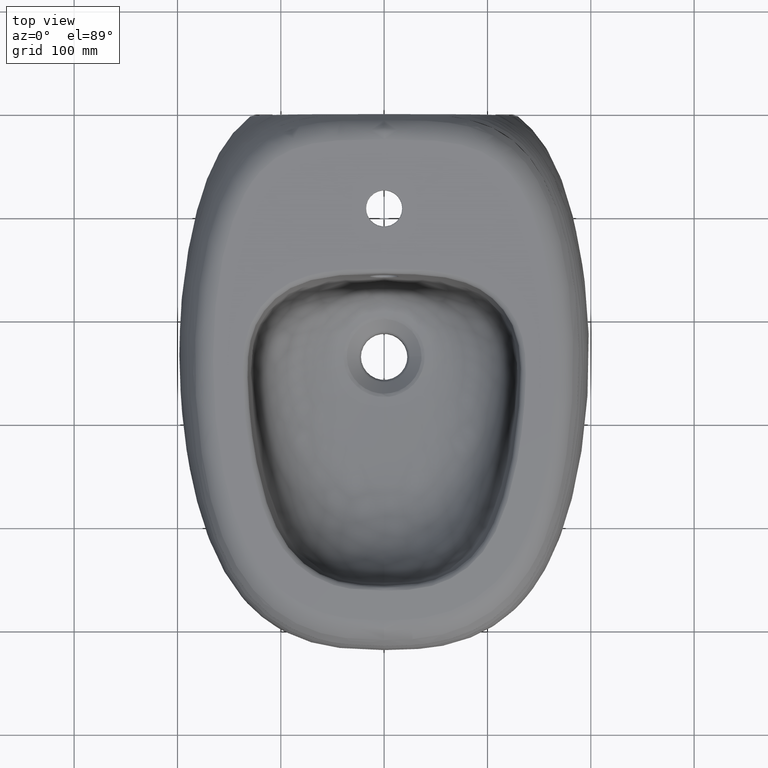
[diagram: clean part render]
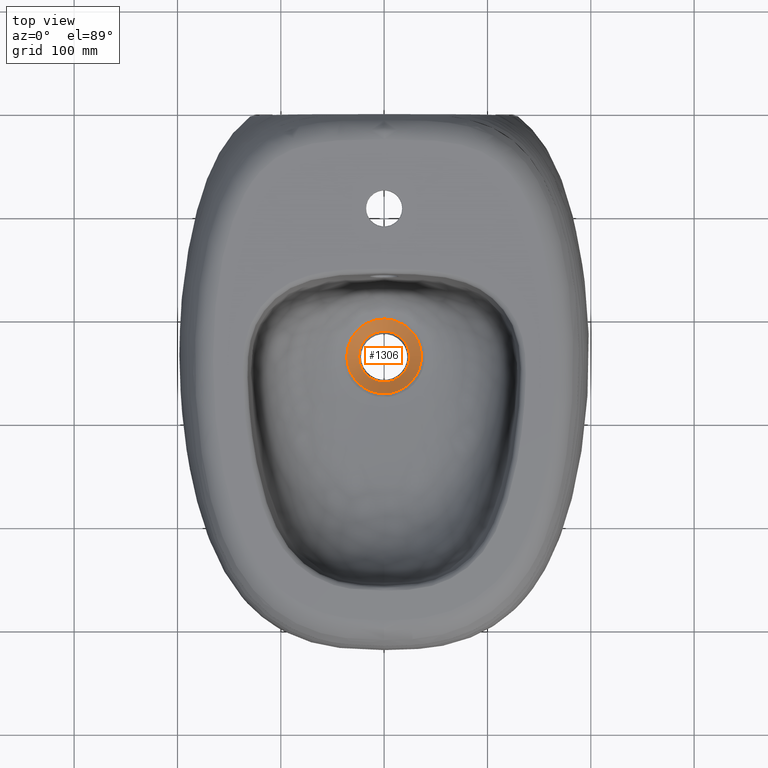
[diagram: same view with one face highlighted and labeled with its STEP entity id]
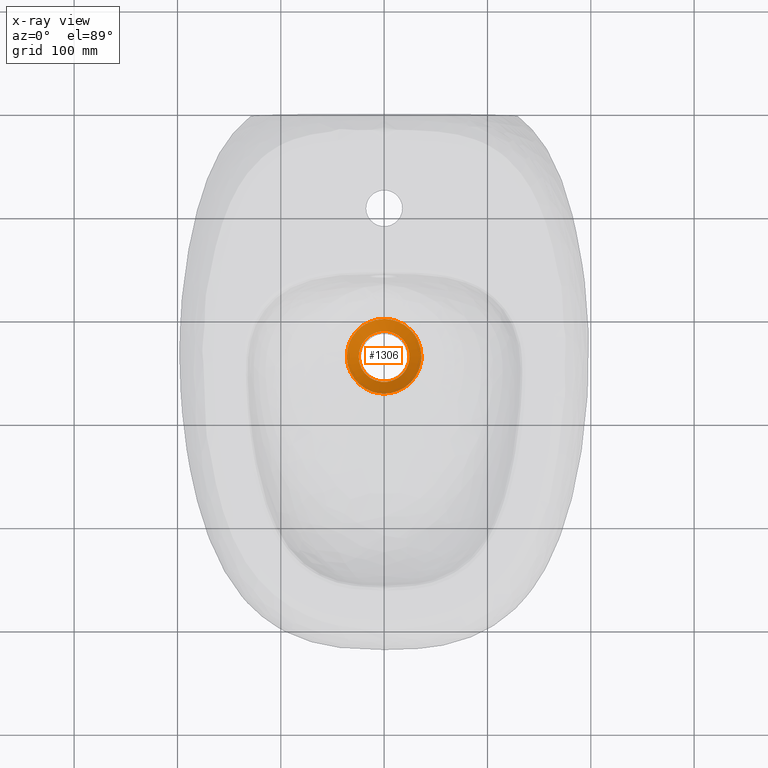
[diagram: x-ray of the same camera — body ghosted, the highlighted face saturated]
A machine part, top view. The second image highlights one B-rep face of the part: STEP entity #1306.
The next image is the same camera in x-ray: the body ghosted, the highlighted face saturated — about 0% of this face is hidden behind the body in this view.
In plain terms, the highlighted conical surface has half-angle 50 deg.
Its self-contained STEP definition (entity closure, byte-faithful):
#307=CONICAL_SURFACE('',#5470,37.5,50.);
#743=FACE_BOUND('',#2007,.T.);
#744=FACE_BOUND('',#2008,.T.);
#805=B_SPLINE_CURVE_WITH_KNOTS('',3,(#6842,#6843,#6844,#6845,#6846,#6847,
#6848,#6849,#6850,#6851,#6852,#6853,#6854,#6855,#6856,#6857,#6858,#6859),
 .UNSPECIFIED.,.F.,.F.,(4,2,2,2,2,2,2,2,4),(0.,0.125,0.25,0.375,0.5,0.625,
0.75,0.875,1.),.UNSPECIFIED.);
#806=B_SPLINE_CURVE_WITH_KNOTS('',3,(#6862,#6863,#6864,#6865,#6866,#6867,
#6868,#6869,#6870,#6871,#6872,#6873,#6874,#6875,#6876,#6877),
 .UNSPECIFIED.,.F.,.F.,(4,2,2,2,2,2,2,4),(0.,0.125,0.25,0.5,0.625,0.75,
0.875,1.),.UNSPECIFIED.);
#807=B_SPLINE_CURVE_WITH_KNOTS('',3,(#6879,#6880,#6881,#6882,#6883,#6884,
#6885,#6886),.UNSPECIFIED.,.F.,.F.,(4,2,2,4),(0.,0.25,0.499999999999999,
1.),.UNSPECIFIED.);
#808=B_SPLINE_CURVE_WITH_KNOTS('',3,(#6888,#6889,#6890,#6891,#6892,#6893,
#6894,#6895),.UNSPECIFIED.,.F.,.F.,(4,2,2,4),(0.,0.25,0.499999999999999,
1.),.UNSPECIFIED.);
#1306=ADVANCED_FACE('',(#743,#744),#307,.F.);
#2007=EDGE_LOOP('',(#2411));
#2008=EDGE_LOOP('',(#2412,#2413,#2414,#2415));
#2411=ORIENTED_EDGE('',*,*,#4564,.T.);
#2412=ORIENTED_EDGE('',*,*,#4565,.T.);
#2413=ORIENTED_EDGE('',*,*,#4566,.T.);
#2414=ORIENTED_EDGE('',*,*,#4567,.T.);
#2415=ORIENTED_EDGE('',*,*,#4568,.T.);
#4056=VERTEX_POINT('',#6841);
#4057=VERTEX_POINT('',#6860);
#4058=VERTEX_POINT('',#6861);
#4059=VERTEX_POINT('',#6878);
#4060=VERTEX_POINT('',#6887);
#4564=EDGE_CURVE('',#4056,#4056,#5346,.T.);
#4565=EDGE_CURVE('',#4057,#4058,#805,.T.);
#4566=EDGE_CURVE('',#4058,#4059,#806,.T.);
#4567=EDGE_CURVE('',#4059,#4060,#807,.T.);
#4568=EDGE_CURVE('',#4060,#4057,#808,.T.);
#5346=CIRCLE('',#5469,24.6432743418807);
#5469=AXIS2_PLACEMENT_3D('',#6840,#5729,#5730);
#5470=AXIS2_PLACEMENT_3D('',#6896,#5731,#5732);
#5729=DIRECTION('',(0.,0.,-1.));
#5730=DIRECTION('',(1.,0.,0.));
#5731=DIRECTION('',(0.,0.,1.));
#5732=DIRECTION('',(1.,0.,-4.5158420984646E-17));
#6840=CARTESIAN_POINT('',(1.21339260814855E-15,-235.965878294816,180.621740826199));
#6841=CARTESIAN_POINT('',(24.6432743418807,-235.965878294816,180.621740826199));
#6842=CARTESIAN_POINT('',(-26.3264398491075,-211.191545385529,190.277337706523));
#6843=CARTESIAN_POINT('',(-28.7382290294297,-213.766629641513,190.270323883274));
#6844=CARTESIAN_POINT('',(-30.7216532151862,-216.624787451064,190.263094859862));
#6845=CARTESIAN_POINT('',(-33.8508060789728,-222.894675006819,190.249572488699));
#6846=CARTESIAN_POINT('',(-34.9677022699343,-226.305441639199,190.242701730543));
#6847=CARTESIAN_POINT('',(-36.1596989443875,-233.188099254447,190.233122082471));
#6848=CARTESIAN_POINT('',(-36.2566621199035,-236.700430947404,190.229783048582));
#6849=CARTESIAN_POINT('',(-35.4292895951012,-243.67446877575,190.224805429669));
#6850=CARTESIAN_POINT('',(-34.5262459875847,-247.033184688055,190.222978299246));
#6851=CARTESIAN_POINT('',(-31.7355129707238,-253.492455295827,190.220382591353));
#6852=CARTESIAN_POINT('',(-29.8951865163096,-256.469380434051,190.219702889678));
#6853=CARTESIAN_POINT('',(-25.4006180863077,-261.827682824898,190.218639579188));
#6854=CARTESIAN_POINT('',(-22.7536574353519,-264.182085466151,190.218063628758));
#6855=CARTESIAN_POINT('',(-16.9346092126523,-268.014201168874,190.21797890875));
#6856=CARTESIAN_POINT('',(-13.7047483460187,-269.523735389711,190.219270163752));
#6857=CARTESIAN_POINT('',(-7.04364289092745,-271.530629596172,190.225252618974));
#6858=CARTESIAN_POINT('',(-3.52833995988248,-272.060641332453,190.230681755983));
#6859=CARTESIAN_POINT('',(-1.20543833882722E-5,-272.060654226426,190.230691586568));
#6860=CARTESIAN_POINT('',(-26.3264398491075,-211.191545385529,190.277337706523));
#6861=CARTESIAN_POINT('',(-1.20543834019163E-5,-272.060654226426,190.230691586568));
#6862=CARTESIAN_POINT('',(-1.20543834023948E-5,-272.060654226505,190.230691586635));
#6863=CARTESIAN_POINT('',(3.52856804932877,-272.060643717566,190.230681779775));
#6864=CARTESIAN_POINT('',(6.9696419521045,-271.547848818133,190.225326796653));
#6865=CARTESIAN_POINT('',(13.683358573244,-269.535184372372,190.219281767401));
#6866=CARTESIAN_POINT('',(16.8800597197124,-268.043506725792,190.217987647354));
#6867=CARTESIAN_POINT('',(25.6298568924534,-262.301048776352,190.218086668444));
#6868=CARTESIAN_POINT('',(30.3481873938873,-256.683699347745,190.219108464552));
#6869=CARTESIAN_POINT('',(34.4980228116462,-247.108312137323,190.222943995296));
#6870=CARTESIAN_POINT('',(35.4278438778031,-243.683480003682,190.224799493481));
#6871=CARTESIAN_POINT('',(36.2572019641733,-236.699051981444,190.229783537893));
#6872=CARTESIAN_POINT('',(36.1577991243847,-233.173184928048,190.23314059537));
#6873=CARTESIAN_POINT('',(34.967209190189,-226.30654716486,190.242702441985));
#6874=CARTESIAN_POINT('',(33.8577503098768,-222.919669593244,190.249524025454));
#6875=CARTESIAN_POINT('',(30.7602162972209,-216.691137298359,190.262946398323));
#6876=CARTESIAN_POINT('',(28.7381844777103,-213.766585481753,190.270324004877));
#6877=CARTESIAN_POINT('',(26.3264561438222,-211.191562783522,190.277337659136));
#6878=CARTESIAN_POINT('',(26.3264561438221,-211.191562783522,190.277337659136));
#6879=CARTESIAN_POINT('',(26.3264561438221,-211.191562783522,190.277337659136));
#6880=CARTESIAN_POINT('',(24.6315426152532,-209.381889303189,190.28226671243));
#6881=CARTESIAN_POINT('',(22.781543741877,-207.77646931862,190.286745752646));
#6882=CARTESIAN_POINT('',(18.783725241477,-204.957870523178,190.294673192094));
#6883=CARTESIAN_POINT('',(16.6083296260299,-203.734689589714,190.298288644701));
#6884=CARTESIAN_POINT('',(9.84954203097054,-200.802046468409,190.306737233486));
#6885=CARTESIAN_POINT('',(4.95884078165116,-199.777689984988,190.309073871799));
#6886=CARTESIAN_POINT('',(-5.98230333219104E-8,-199.777690079257,190.309073799576));
#6887=CARTESIAN_POINT('',(-5.98230346406925E-8,-199.777690079257,190.309073799576));
#6888=CARTESIAN_POINT('',(-5.98230346406947E-8,-199.777690079257,190.309073799576));
#6889=CARTESIAN_POINT('',(-2.47944404688356,-199.777690040333,190.309073835677));
#6890=CARTESIAN_POINT('',(-4.91582100561872,-200.030488404674,190.308503990558));
#6891=CARTESIAN_POINT('',(-9.70580539927395,-201.021931231589,190.305774137912));
#6892=CARTESIAN_POINT('',(-12.0856192179722,-201.773613171236,190.303937393803));
#6893=CARTESIAN_POINT('',(-18.845827372789,-204.702893846655,190.295501104238));
#6894=CARTESIAN_POINT('',(-22.9366702901998,-207.572264606854,190.287195634709));
#6895=CARTESIAN_POINT('',(-26.3264398491074,-211.191545385529,190.277337706523));
#6896=CARTESIAN_POINT('',(1.21339260814855E-15,-235.965878294816,191.409814584074));